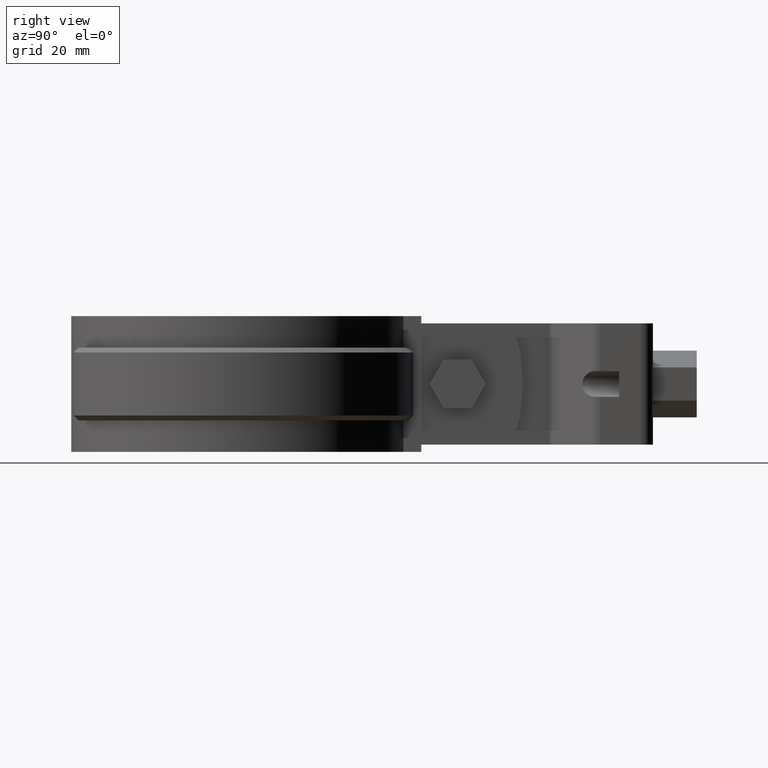
[diagram: clean part render]
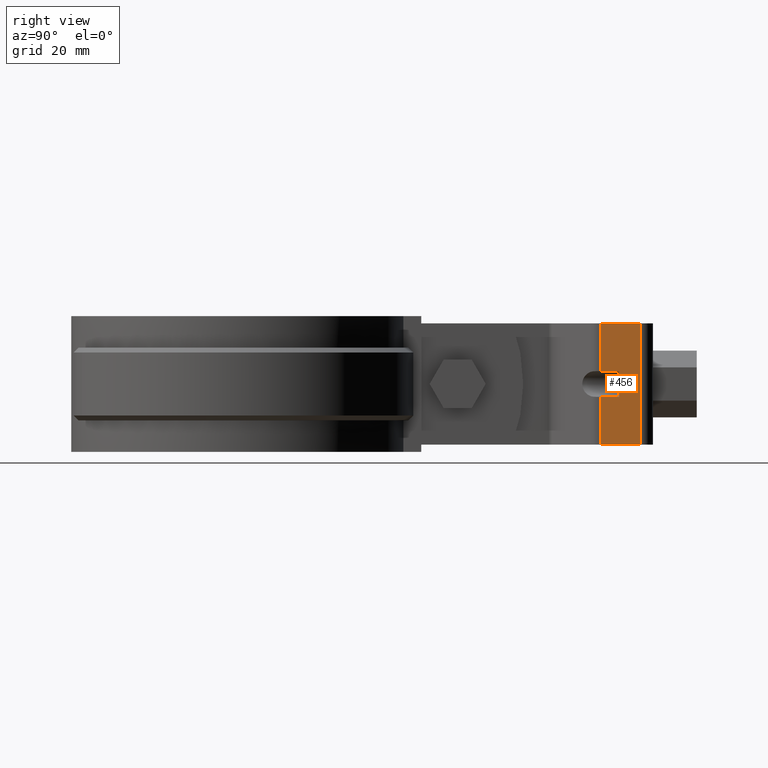
[diagram: same view with one face highlighted and labeled with its STEP entity id]
A machine part, right view. The second image highlights one B-rep face of the part: STEP entity #456.
In plain terms, the highlighted planar face has unit normal (1, 0, -0).
Its self-contained STEP definition (entity closure, byte-faithful):
#456 = ADVANCED_FACE( '', ( #836 ), #837, .T. );
#836 = FACE_OUTER_BOUND( '', #1839, .T. );
#837 = PLANE( '', #1840 );
#1839 = EDGE_LOOP( '', ( #4119, #4120, #4121, #4122, #4123, #4124, #4125, #4126 ) );
#1840 = AXIS2_PLACEMENT_3D( '', #4127, #4128, #4129 );
#4119 = ORIENTED_EDGE( '', *, *, #5183, .T. );
#4120 = ORIENTED_EDGE( '', *, *, #5184, .T. );
#4121 = ORIENTED_EDGE( '', *, *, #5185, .F. );
#4122 = ORIENTED_EDGE( '', *, *, #5144, .F. );
#4123 = ORIENTED_EDGE( '', *, *, #5181, .T. );
#4124 = ORIENTED_EDGE( '', *, *, #5169, .T. );
#4125 = ORIENTED_EDGE( '', *, *, #5179, .F. );
#4126 = ORIENTED_EDGE( '', *, *, #5165, .F. );
#4127 = CARTESIAN_POINT( '', ( 12.2499999999565, 74.4973169813890, -8.26763657535423E-009 ) );
#4128 = DIRECTION( '', ( 1.00000000000000, 8.94763120851982E-014, -3.93786082000195E-013 ) );
#4129 = DIRECTION( '', ( 8.94763121102739E-014, -1.00000000000000, 6.36784791563427E-011 ) );
#5144 = EDGE_CURVE( '', #6003, #6005, #6006, .T. );
#5165 = EDGE_CURVE( '', #6042, #6044, #6045, .T. );
#5169 = EDGE_CURVE( '', #6052, #6050, #6053, .T. );
#5179 = EDGE_CURVE( '', #6044, #6050, #6069, .T. );
#5181 = EDGE_CURVE( '', #6003, #6052, #6071, .T. );
#5183 = EDGE_CURVE( '', #6042, #6073, #6074, .T. );
#5184 = EDGE_CURVE( '', #6073, #6075, #6076, .T. );
#5185 = EDGE_CURVE( '', #6005, #6075, #6077, .T. );
#6003 = VERTEX_POINT( '', #9107 );
#6005 = VERTEX_POINT( '', #9109 );
#6006 = LINE( '', #9110, #9111 );
#6042 = VERTEX_POINT( '', #9157 );
#6044 = VERTEX_POINT( '', #9168 );
#6045 = LINE( '', #9169, #9170 );
#6050 = VERTEX_POINT( '', #9175 );
#6052 = VERTEX_POINT( '', #9177 );
#6053 = LINE( '', #9178, #9179 );
#6069 = LINE( '', #9216, #9217 );
#6071 = LINE( '', #9220, #9221 );
#6073 = VERTEX_POINT( '', #9224 );
#6074 = LINE( '', #9225, #9226 );
#6075 = VERTEX_POINT( '', #9227 );
#6076 = LINE( '', #9228, #9229 );
#6077 = LINE( '', #9230, #9231 );
#9107 = CARTESIAN_POINT( '', ( 12.2499999999565, 74.4973169813890, -8.26763657535423E-009 ) );
#9109 = CARTESIAN_POINT( '', ( 12.2499999999558, 82.8015111822749, -8.79643580198319E-009 ) );
#9110 = CARTESIAN_POINT( '', ( 12.2499999999565, 74.4973169813890, -8.26763657535423E-009 ) );
#9111 = VECTOR( '', #10189, 1000.00000000000 );
#9157 = CARTESIAN_POINT( '', ( 12.2499999999505, 74.4973169804243, -15.1500000082676 ) );
#9168 = CARTESIAN_POINT( '', ( 12.2499999999502, 78.4015111813099, -15.1500000085162 ) );
#9169 = CARTESIAN_POINT( '', ( 12.2499999999511, 68.4015111813099, -15.1500000078794 ) );
#9170 = VECTOR( '', #10227, 1000.00000000000 );
#9175 = CARTESIAN_POINT( '', ( 12.2499999999523, 78.4015111816474, -9.85000000851628 ) );
#9177 = CARTESIAN_POINT( '', ( 12.2499999999526, 74.4973169807617, -9.85000000826766 ) );
#9178 = CARTESIAN_POINT( '', ( 12.2499999999532, 68.4015111816474, -9.85000000787950 ) );
#9179 = VECTOR( '', #10237, 1000.00000000000 );
#9216 = CARTESIAN_POINT( '', ( 12.2499999999496, 78.4015111812083, -16.7500000085162 ) );
#9217 = VECTOR( '', #10248, 1000.00000000000 );
#9220 = CARTESIAN_POINT( '', ( 12.2499999999565, 74.4973169813890, -8.26763657535423E-009 ) );
#9221 = VECTOR( '', #10250, 1000.00000000000 );
#9224 = CARTESIAN_POINT( '', ( 12.2499999999467, 74.4973169797971, -25.0000000082676 ) );
#9225 = CARTESIAN_POINT( '', ( 12.2499999999565, 74.4973169813890, -8.26763657535423E-009 ) );
#9226 = VECTOR( '', #10252, 1000.00000000000 );
#9227 = CARTESIAN_POINT( '', ( 12.2499999999459, 82.8015111806830, -25.0000000087964 ) );
#9228 = CARTESIAN_POINT( '', ( 12.2499999999467, 74.4973169797971, -25.0000000082676 ) );
#9229 = VECTOR( '', #10253, 1000.00000000000 );
#9230 = CARTESIAN_POINT( '', ( 12.2499999999558, 82.8015111822749, -8.79643580198319E-009 ) );
#9231 = VECTOR( '', #10254, 1000.00000000000 );
#10189 = DIRECTION( '', ( -8.94763121102739E-014, 1.00000000000000, -6.36784791563427E-011 ) );
#10227 = DIRECTION( '', ( -8.94763121102739E-014, 1.00000000000000, -6.36784791563427E-011 ) );
#10237 = DIRECTION( '', ( -8.94763121102739E-014, 1.00000000000000, -6.36784791563427E-011 ) );
#10248 = DIRECTION( '', ( 3.93787932530478E-013, 6.36784791563427E-011, 1.00000000000000 ) );
#10250 = DIRECTION( '', ( -3.93786081994497E-013, -6.36784791563427E-011, -1.00000000000000 ) );
#10252 = DIRECTION( '', ( -3.93786081994497E-013, -6.36784791563427E-011, -1.00000000000000 ) );
#10253 = DIRECTION( '', ( -8.94763121102739E-014, 1.00000000000000, -6.36784791563427E-011 ) );
#10254 = DIRECTION( '', ( -3.93786081994497E-013, -6.36784791563427E-011, -1.00000000000000 ) );